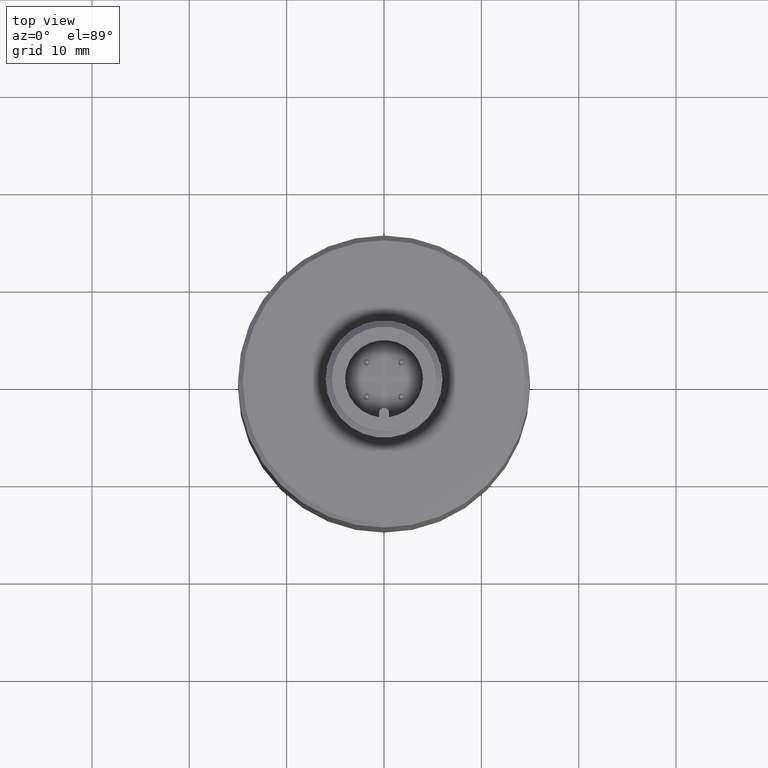
[diagram: clean part render]
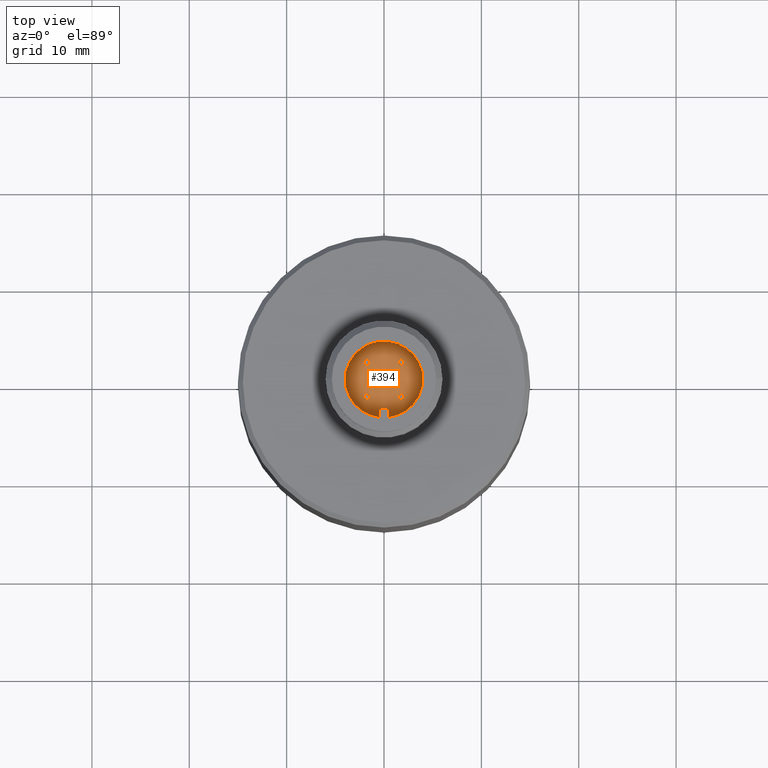
[diagram: same view with one face highlighted and labeled with its STEP entity id]
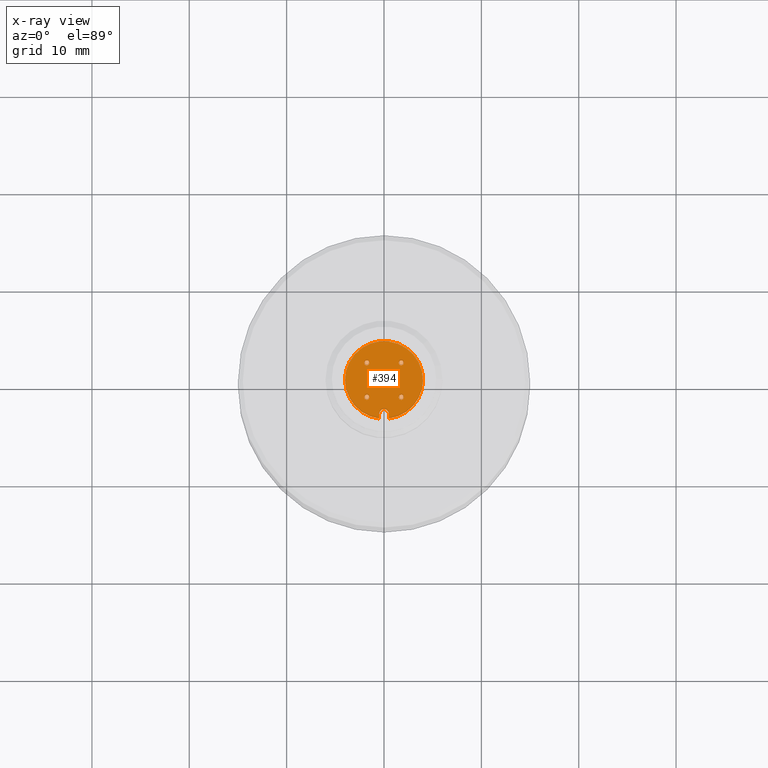
[diagram: x-ray of the same camera — body ghosted, the highlighted face saturated]
A machine part, top view. The second image highlights one B-rep face of the part: STEP entity #394.
The next image is the same camera in x-ray: the body ghosted, the highlighted face saturated — about 0% of this face is hidden behind the body in this view.
In plain terms, the highlighted planar face has unit normal (0, 0, -1).
Its self-contained STEP definition (entity closure, byte-faithful):
#169=CARTESIAN_POINT('POINT608',(-1.59099025766973E+000,
   -1.59099025766973E+000,5.4E+001));
#170=VERTEX_POINT('VERTEX608',#169);
#177=CARTESIAN_POINT('POINT609',(-1.94454364826301E+000,
   -1.94454364826301E+000,5.4E+001));
#178=VERTEX_POINT('VERTEX609',#177);
#179=CARTESIAN_POINT('POS943',(-1.76776695296637E+000,
   -1.76776695296637E+000,5.4E+001));
#180=DIRECTION('DIR1393',(0.0E+000,0.0E+000,-1.0E+000));
#181=DIRECTION('DIR1394',(7.07106781186548E-001,7.07106781186548E-001,
   0.0E+000));
#182=AXIS2_PLACEMENT_3D('AXIS451',#179,#180,#181);
#183=CIRCLE('ELLIPSE216',#182,2.5E-001);
#184=EDGE_CURVE('EDGE928',#178,#170,#183,.T.);
#204=EDGE_CURVE('EDGE930',#170,#178,#183,.T.);
#209=CARTESIAN_POINT('POINT610',(1.59099025766973E+000,
   -1.59099025766973E+000,5.4E+001));
#210=VERTEX_POINT('VERTEX610',#209);
#217=CARTESIAN_POINT('POINT611',(1.94454364826301E+000,
   -1.94454364826301E+000,5.4E+001));
#218=VERTEX_POINT('VERTEX611',#217);
#219=CARTESIAN_POINT('POS947',(1.76776695296637E+000,
   -1.76776695296637E+000,5.4E+001));
#220=DIRECTION('DIR1399',(0.0E+000,0.0E+000,-1.0E+000));
#221=DIRECTION('DIR1400',(-7.07106781186548E-001,7.07106781186548E-001,
   0.0E+000));
#222=AXIS2_PLACEMENT_3D('AXIS453',#219,#220,#221);
#223=CIRCLE('ELLIPSE217',#222,2.5E-001);
#224=EDGE_CURVE('EDGE932',#218,#210,#223,.T.);
#244=EDGE_CURVE('EDGE934',#210,#218,#223,.T.);
#249=CARTESIAN_POINT('POINT612',(1.59099025766973E+000,
   1.59099025766973E+000,5.4E+001));
#250=VERTEX_POINT('VERTEX612',#249);
#257=CARTESIAN_POINT('POINT613',(1.94454364826301E+000,
   1.94454364826301E+000,5.4E+001));
#258=VERTEX_POINT('VERTEX613',#257);
#259=CARTESIAN_POINT('POS951',(1.76776695296637E+000,
   1.76776695296637E+000,5.4E+001));
#260=DIRECTION('DIR1405',(0.0E+000,0.0E+000,-1.0E+000));
#261=DIRECTION('DIR1406',(-7.07106781186548E-001,-7.07106781186547E-001,
   0.0E+000));
#262=AXIS2_PLACEMENT_3D('AXIS455',#259,#260,#261);
#263=CIRCLE('ELLIPSE218',#262,2.5E-001);
#264=EDGE_CURVE('EDGE936',#258,#250,#263,.T.);
#284=EDGE_CURVE('EDGE938',#250,#258,#263,.T.);
#289=CARTESIAN_POINT('POINT614',(-1.59099025766973E+000,
   1.59099025766973E+000,5.4E+001));
#290=VERTEX_POINT('VERTEX614',#289);
#297=CARTESIAN_POINT('POINT615',(-1.94454364826301E+000,
   1.94454364826301E+000,5.4E+001));
#298=VERTEX_POINT('VERTEX615',#297);
#299=CARTESIAN_POINT('POS955',(-1.76776695296637E+000,
   1.76776695296637E+000,5.4E+001));
#300=DIRECTION('DIR1411',(0.0E+000,0.0E+000,-1.0E+000));
#301=DIRECTION('DIR1412',(7.07106781186547E-001,-7.07106781186548E-001,
   0.0E+000));
#302=AXIS2_PLACEMENT_3D('AXIS457',#299,#300,#301);
#303=CIRCLE('ELLIPSE219',#302,2.5E-001);
#304=EDGE_CURVE('EDGE940',#298,#290,#303,.T.);
#324=EDGE_CURVE('EDGE942',#290,#298,#303,.T.);
#329=CARTESIAN_POINT('POINT616',(5.0E-001,-3.5E+000,5.4E+001));
#330=VERTEX_POINT('VERTEX616',#329);
#331=CARTESIAN_POINT('POINT617',(5.0E-001,-3.96862696659689E+000,
   5.4E+001));
#332=VERTEX_POINT('VERTEX617',#331);
#333=CARTESIAN_POINT('POS958',(5.0E-001,-1.75E+000,5.4E+001));
#334=DIRECTION('DIR1416',(0.0E+000,-1.0E+000,0.0E+000));
#335=VECTOR('VEC500',#334,1.0E+000);
#336=LINE('STRAIGHT500',#333,#335);
#337=EDGE_CURVE('EDGE943',#330,#332,#336,.T.);
#338=ORIENTED_EDGE('COEDGE1877',*,*,#337,.T.);
#339=CARTESIAN_POINT('POINT618',(4.0E+000,4.89842541528951E-016,5.4E+001
   ));
#340=VERTEX_POINT('VERTEX618',#339);
#341=CARTESIAN_POINT('POS959',(0.0E+000,0.0E+000,5.4E+001));
#342=DIRECTION('DIR1417',(0.0E+000,0.0E+000,-1.0E+000));
#343=DIRECTION('DIR1418',(1.0E+000,0.0E+000,0.0E+000));
#344=AXIS2_PLACEMENT_3D('AXIS459',#341,#342,#343);
#345=CIRCLE('ELLIPSE220',#344,4.0E+000);
#346=EDGE_CURVE('EDGE944',#340,#332,#345,.T.);
#347=ORIENTED_EDGE('COEDGE1878',*,*,#346,.F.);
#348=CARTESIAN_POINT('POINT619',(-4.0E+000,-4.89842541528951E-016,
   5.4E+001));
#349=VERTEX_POINT('VERTEX619',#348);
#350=EDGE_CURVE('EDGE945',#349,#340,#345,.T.);
#351=ORIENTED_EDGE('COEDGE1879',*,*,#350,.F.);
#352=CARTESIAN_POINT('POINT620',(-5.0E-001,-3.96862696659689E+000,
   5.4E+001));
#353=VERTEX_POINT('VERTEX620',#352);
#354=EDGE_CURVE('EDGE946',#353,#349,#345,.T.);
#355=ORIENTED_EDGE('COEDGE1880',*,*,#354,.F.);
#356=CARTESIAN_POINT('POINT621',(-5.0E-001,-3.5E+000,5.4E+001));
#357=VERTEX_POINT('VERTEX621',#356);
#358=CARTESIAN_POINT('POS960',(-5.0E-001,-2.0E+000,5.4E+001));
#359=DIRECTION('DIR1419',(0.0E+000,1.0E+000,0.0E+000));
#360=VECTOR('VEC501',#359,1.0E+000);
#361=LINE('STRAIGHT501',#358,#360);
#362=EDGE_CURVE('EDGE947',#353,#357,#361,.T.);
#363=ORIENTED_EDGE('COEDGE1881',*,*,#362,.T.);
#364=CARTESIAN_POINT('POS961',(-2.22044604925031E-016,-3.5E+000,5.4E+001
   ));
#365=DIRECTION('DIR1420',(0.0E+000,0.0E+000,-1.0E+000));
#366=DIRECTION('DIR1421',(1.0E+000,-6.66133814775094E-016,0.0E+000));
#367=AXIS2_PLACEMENT_3D('AXIS460',#364,#365,#366);
#368=CIRCLE('ELLIPSE221',#367,5.0E-001);
#369=EDGE_CURVE('EDGE948',#357,#330,#368,.T.);
#370=ORIENTED_EDGE('COEDGE1882',*,*,#369,.T.);
#371=EDGE_LOOP('NONE',(#338,#347,#351,#355,#363,#370));
#372=FACE_BOUND('LOOP1',#371,.T.);
#373=ORIENTED_EDGE('COEDGE1883',*,*,#324,.T.);
#374=ORIENTED_EDGE('COEDGE1884',*,*,#304,.T.);
#375=EDGE_LOOP('NONE',(#373,#374));
#376=FACE_BOUND('LOOP1',#375,.T.);
#377=ORIENTED_EDGE('COEDGE1885',*,*,#284,.T.);
#378=ORIENTED_EDGE('COEDGE1886',*,*,#264,.T.);
#379=EDGE_LOOP('NONE',(#377,#378));
#380=FACE_BOUND('LOOP1',#379,.T.);
#381=ORIENTED_EDGE('COEDGE1887',*,*,#244,.T.);
#382=ORIENTED_EDGE('COEDGE1888',*,*,#224,.T.);
#383=EDGE_LOOP('NONE',(#381,#382));
#384=FACE_BOUND('LOOP1',#383,.T.);
#385=ORIENTED_EDGE('COEDGE1889',*,*,#204,.T.);
#386=ORIENTED_EDGE('COEDGE1890',*,*,#184,.T.);
#387=EDGE_LOOP('NONE',(#385,#386));
#388=FACE_BOUND('LOOP1',#387,.T.);
#389=CARTESIAN_POINT('POS962',(2.0E+000,-4.89842541528951E-016,5.4E+001)
   );
#390=DIRECTION('DIR1422',(0.0E+000,0.0E+000,-1.0E+000));
#391=DIRECTION('DIR1423',(1.0E+000,0.0E+000,0.0E+000));
#392=AXIS2_PLACEMENT_3D('AXIS461',#389,#390,#391);
#393=PLANE('PLANE148',#392);
#394=ADVANCED_FACE('FACE357',(#372,#376,#380,#384,#388),#393,.F.);